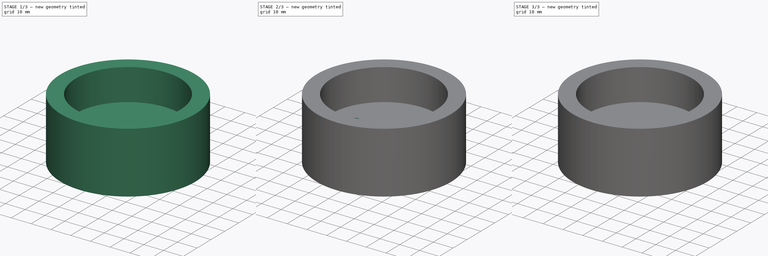
[diagram: build sequence overview — one tinted view per stage of 3, left to right]
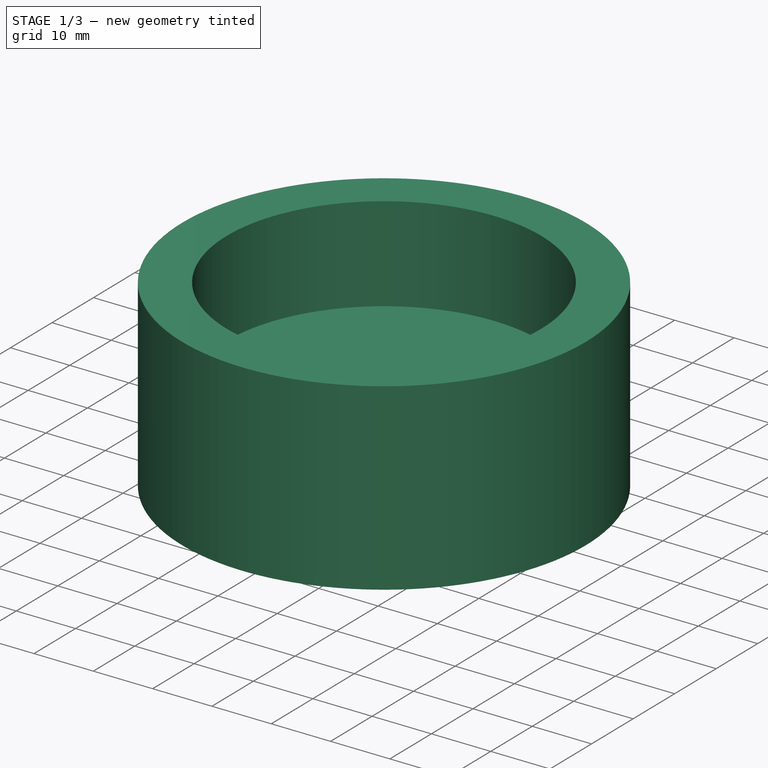
[diagram: stage 1 of 3 — iso view after this stage's code; geometry added in this stage tinted green]
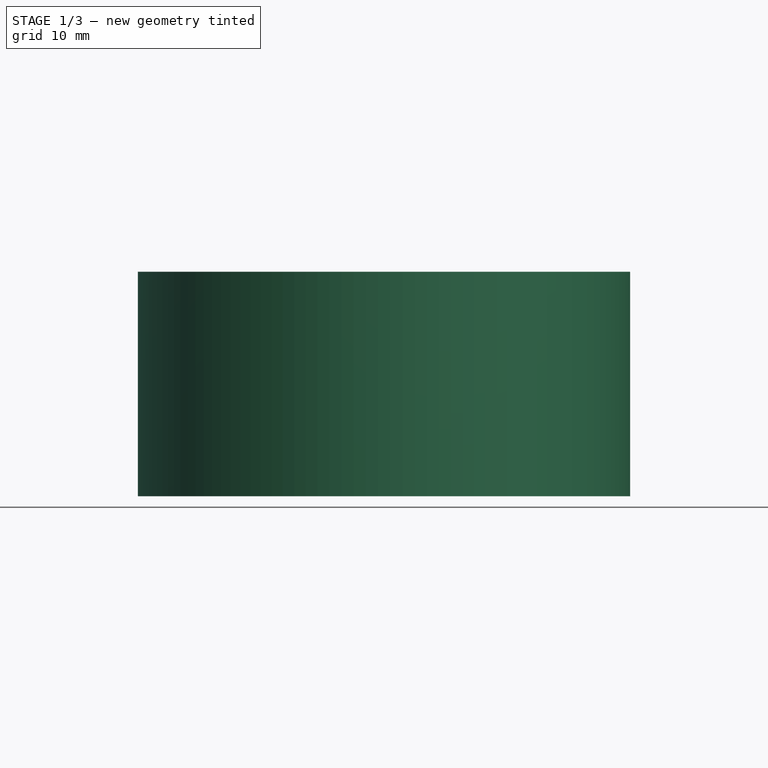
[diagram: stage 1 of 3 — front view after this stage's code; geometry added in this stage tinted green]
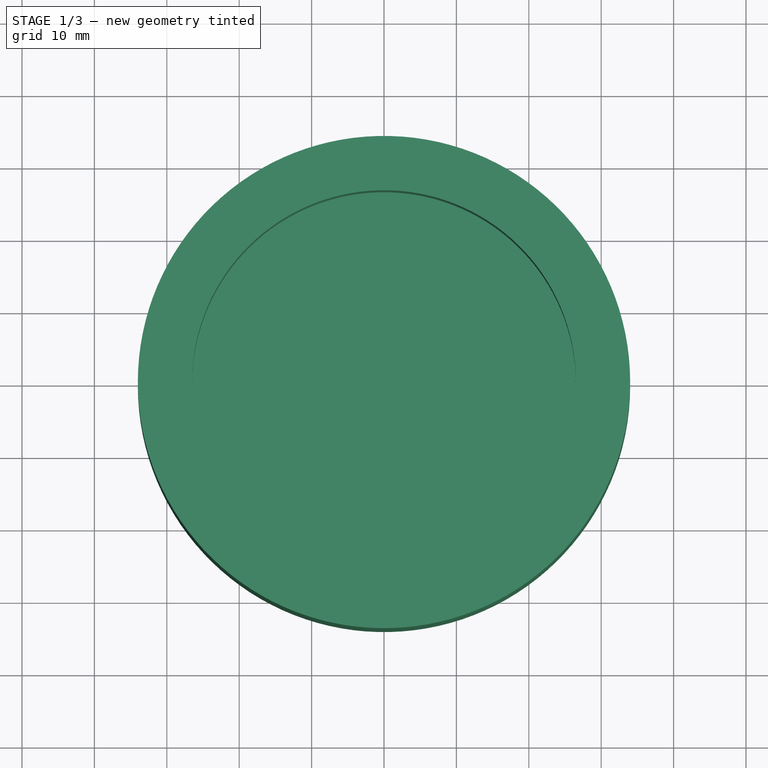
[diagram: stage 1 of 3 — top view after this stage's code; geometry added in this stage tinted green]
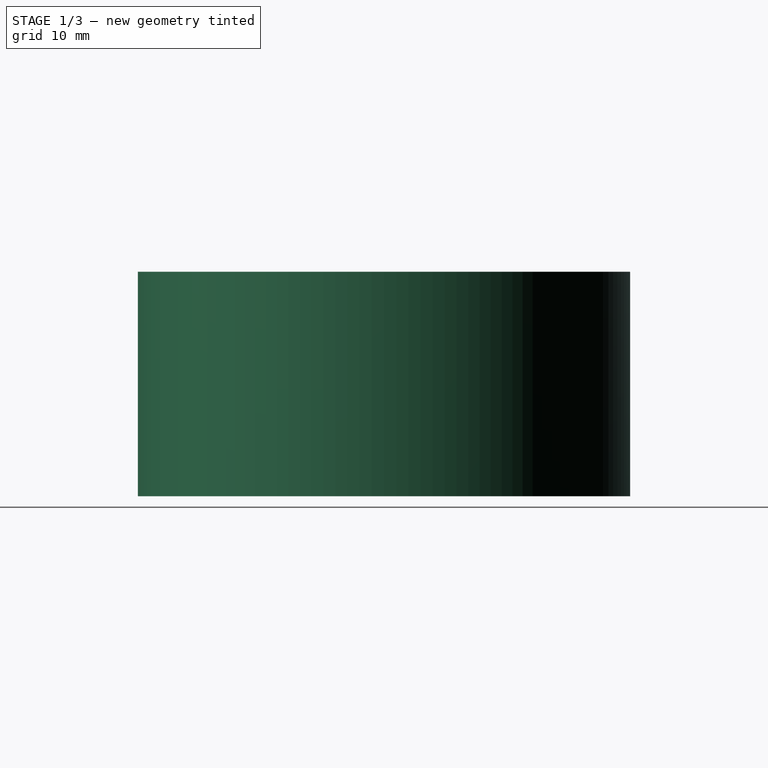
[diagram: stage 1 of 3 — right view after this stage's code; geometry added in this stage tinted green]
FCSTD DOCUMENT  (FreeCAD 0.21R33771 (Git))
Label: sputtering_machine_parts
License: All rights reserved
LicenseURL: https://en.wikipedia.org/wiki/All_rights_reserved
objects: Sketcher::SketchObject×4, PartDesign::Pocket×3, PartDesign::Pad×2, Spreadsheet::Sheet×1, PartDesign::Hole×1, PartDesign::Body×1, App::Part×1
note: 17 computed .brp shape members not serialized (recipe doc carries the construction recipe); baked Part::Feature solids carry a one-line shape summary decoded from their .brp

FEATURE [Spreadsheet::Sheet] Spreadsheet  label="mg_dim"
  cells = A1='Part name; B1='Dimension; C1='Value; A2='holder cylinder; B2='inner diam; C2(hc_inner_diam)==53 mm; A3='holder cylinder; B3='outer diam; C3(hc_outer_diam)==C2 + 15 mm; A4='holder cylinder; B4='outer ring height; C4(hc_outer_ring_h)==C5 + 16 mm; A5='holder cylinder; B5='base height; C5(hc_base_h)==15 mm; A6='back vent; B6='diam; C6(back_vent_diam)==5 mm; A7='rod shaft; B7='diam; C7(rod_shaft_diam)==9.5 mm; A8='rod shaft; B8='hc depth; C8(rod_shaft_hc_depth)==C5 - 5 mm; A9='back vent; B9='dist from center; C9(back_vent_cdist)==15 mm; A10='holder cylinder; B10='plate screw hole diam; C10(hc_screw_hole_diam)==C3 - C2 - 10.5 mm; A11='holder cylinder; B11='plate screw hole cdist; C11(hc_screw_hole_cdist)==C2 / 2 + 0.75 * C10
FEATURE [Sketcher::SketchObject] Sketch
  FullyConstrained = true
  MapMode = 5
  Support = -> [XY_Plane001]
  expr: Constraints[1] = <<mg_dim>>.hc_outer_diam
  expr: Constraints[3] = <<mg_dim>>.hc_inner_diam
  sketch-geometry (2):
    g0: Circle CenterX=0 CenterY=0 CenterZ=0 NormalX=0 NormalY=0 NormalZ=1 AngleXU=0 Radius=34
    g1: Circle CenterX=0 CenterY=0 CenterZ=0 NormalX=0 NormalY=0 NormalZ=1 AngleXU=0 Radius=26.5
  constraints (4):
    c: Coincident(g0,g-1)
    c: Diameter(g0) = 68
    c: Coincident(g1,g0)
    c: Diameter(g1) = 53
FEATURE [PartDesign::Pad] Pad
  Direction = (0,0,1)
  Length = 31
  Length2 = 10
  Profile = -> Sketch
  ReferenceAxis = -> Sketch [N_Axis]
  Type = 0
  expr: Length = <<mg_dim>>.hc_outer_ring_h
FEATURE [PartDesign::Pad] Pad001
  BaseFeature = -> Pad
  Direction = (0,0,1)
  Length = 15
  Length2 = 10
  Profile = -> Pad [Edge5]
  Type = 0
  expr: Length = <<mg_dim>>.hc_base_h
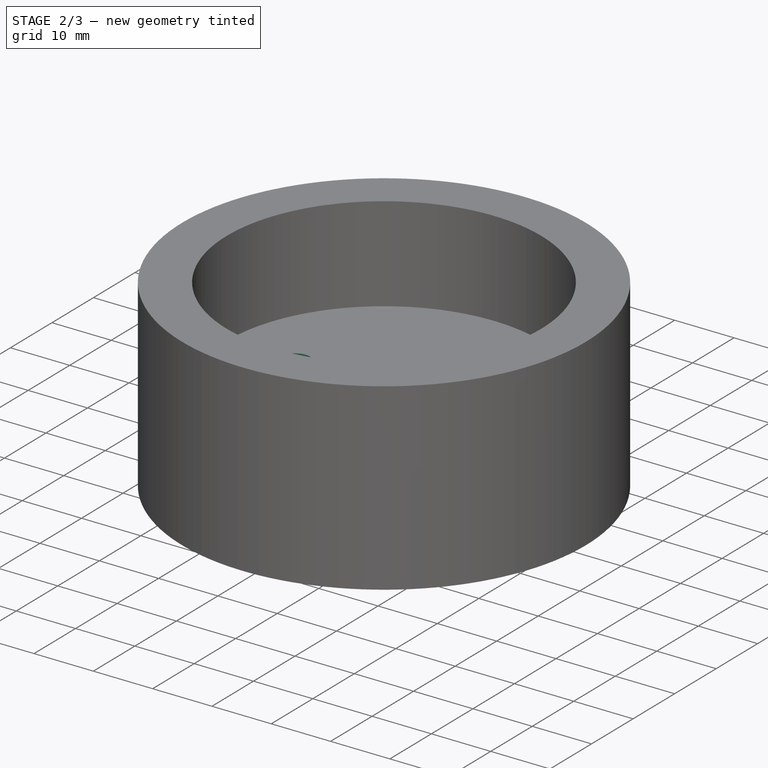
[diagram: stage 2 of 3 — iso view after this stage's code; geometry added in this stage tinted green]
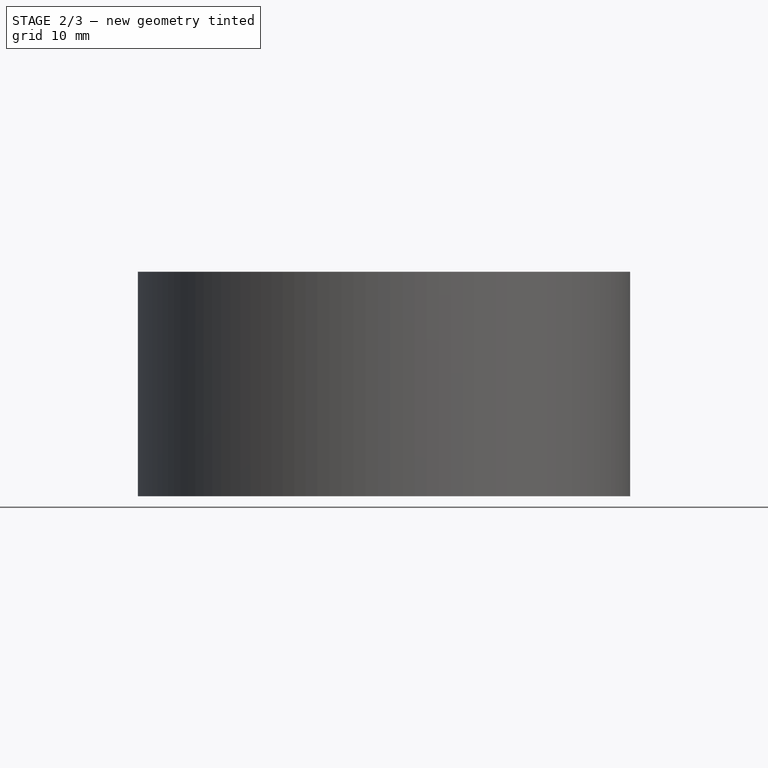
[diagram: stage 2 of 3 — front view after this stage's code; geometry added in this stage tinted green]
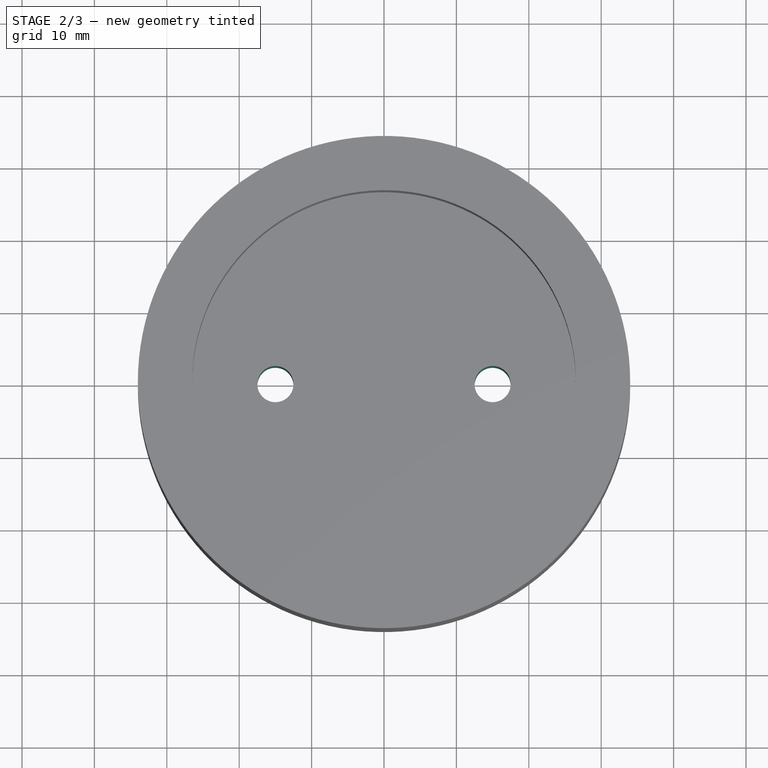
[diagram: stage 2 of 3 — top view after this stage's code; geometry added in this stage tinted green]
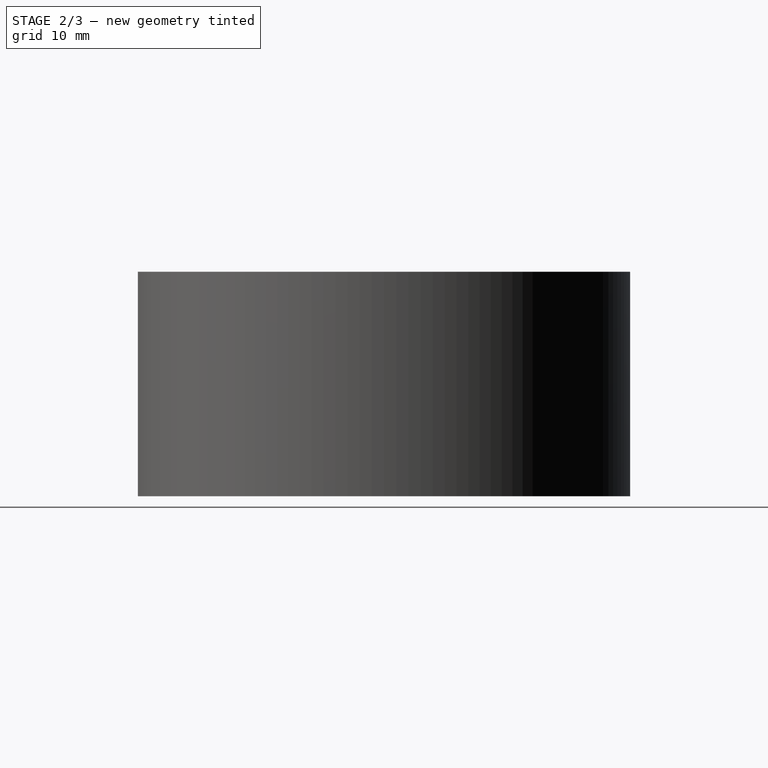
[diagram: stage 2 of 3 — right view after this stage's code; geometry added in this stage tinted green]
FEATURE [Sketcher::SketchObject] Sketch002
  FullyConstrained = false
  MapMode = 5
  Support = -> [XY_Plane001]
  expr: Constraints[0] = <<mg_dim>>.back_vent_diam
  expr: Constraints[2] = <<mg_dim>>.back_vent_diam
  expr: Constraints[3] = <<mg_dim>>.back_vent_cdist
  expr: Constraints[4] = <<mg_dim>>.back_vent_cdist
  sketch-geometry (2):
    g0: Circle CenterX=-15 CenterY=0 CenterZ=0 NormalX=0 NormalY=0 NormalZ=1 AngleXU=0 Radius=2.5
    g1: Circle CenterX=15 CenterY=0 CenterZ=0 NormalX=0 NormalY=0 NormalZ=1 AngleXU=0 Radius=2.5
  constraints (5):
    c: Diameter(g0) = 5
    c: PointOnObject(g1,g-1)
    c: Diameter(g1) = 5
    c: Distance(g-1,g0) = 15
    c: Distance(g-1,g1) = 15
FEATURE [Sketcher::SketchObject] Sketch001
  FullyConstrained = true
  MapMode = 5
  Support = -> [XY_Plane001]
  expr: Constraints[1] = Spreadsheet.rod_shaft_diam
  sketch-geometry (1):
    g0: Circle CenterX=0 CenterY=0 CenterZ=0 NormalX=0 NormalY=0 NormalZ=1 AngleXU=0 Radius=4.75
  constraints (2):
    c: Coincident(g0,g-1)
    c: Diameter(g0) = 9.5
FEATURE [PartDesign::Pocket] Pocket001
  BaseFeature = -> Pad001
  Direction = (0,0,-1)
  Length = 10
  Length2 = 5
  Midplane = true
  Profile = -> Sketch001
  ReferenceAxis = -> Sketch001 [N_Axis]
  Type = 0
  expr: Length = 10 mm
FEATURE [PartDesign::Hole] Hole
  BaseFeature = -> Pocket001
  CustomThreadClearance = 0
  Depth = 15
  DepthType = 0
  Diameter = 5
  DrillForDepth = false
  DrillPoint = 1
  DrillPointAngle = 118
  HoleCutCountersinkAngle = 90
  HoleCutCustomValues = false
  HoleCutDepth = 0
  HoleCutDiameter = 6.1
  HoleCutType = 0
  ModelThread = false
  Profile = -> Sketch002
  Reversed = true
  Tapered = false
  TaperedAngle = 90
  ThreadClass = 0
  ThreadDepth = 15
  ThreadDepthType = 0
  ThreadDirection = 0
  ThreadFit = 0
  ThreadSize = 0
  ThreadType = 0
  Threaded = false
  UseCustomThreadClearance = false
  expr: Depth = <<mg_dim>>.hc_base_h
  expr: Diameter = <<mg_dim>>.back_vent_diam
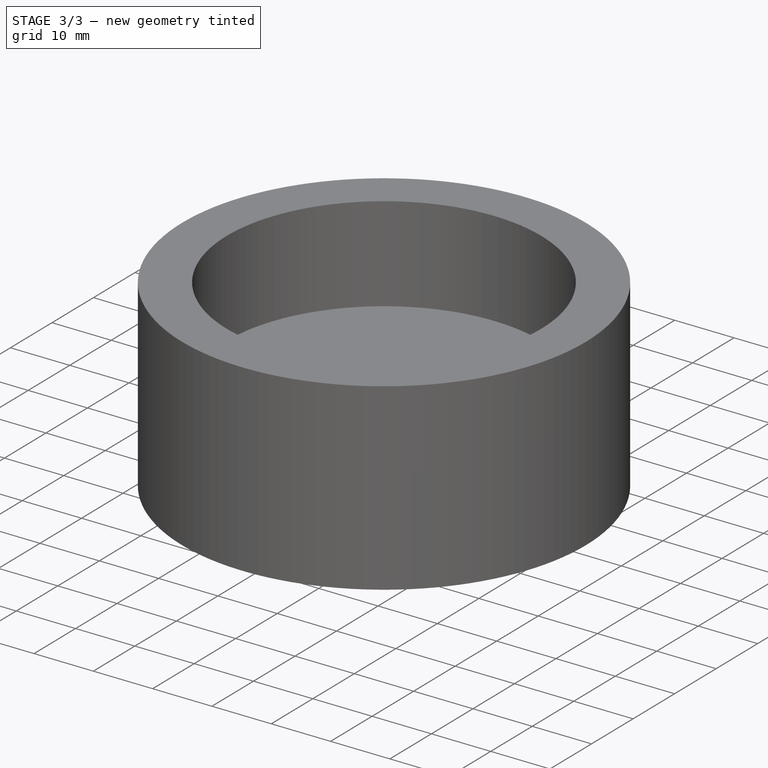
[diagram: stage 3 of 3 — iso view after this stage's code; geometry added in this stage tinted green]
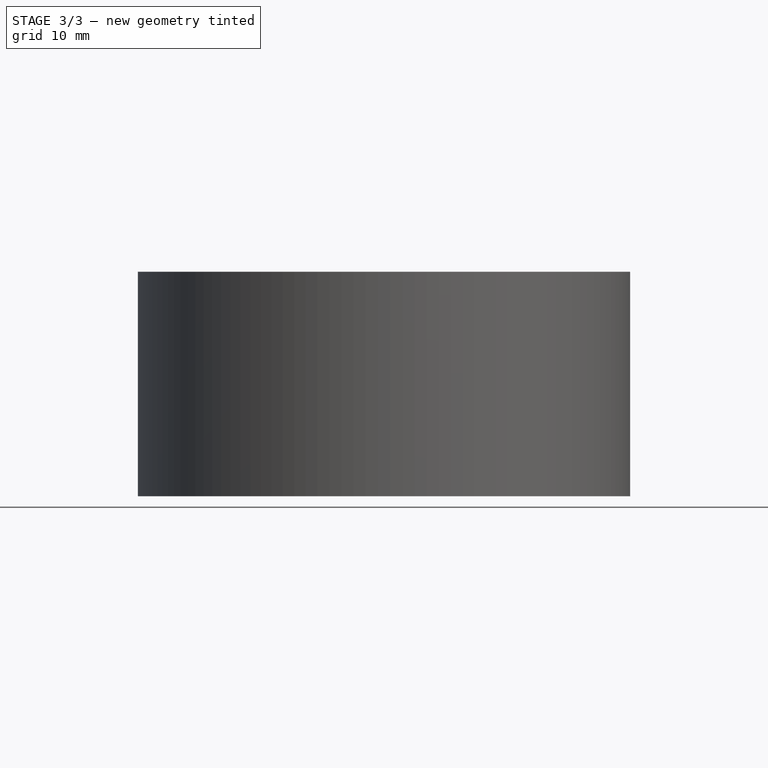
[diagram: stage 3 of 3 — front view after this stage's code; geometry added in this stage tinted green]
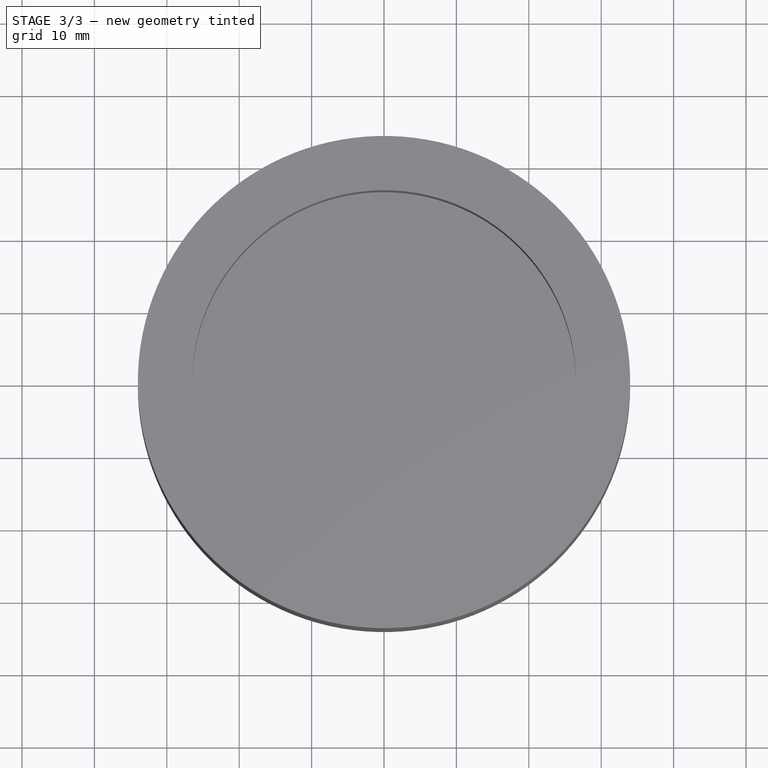
[diagram: stage 3 of 3 — top view after this stage's code; geometry added in this stage tinted green]
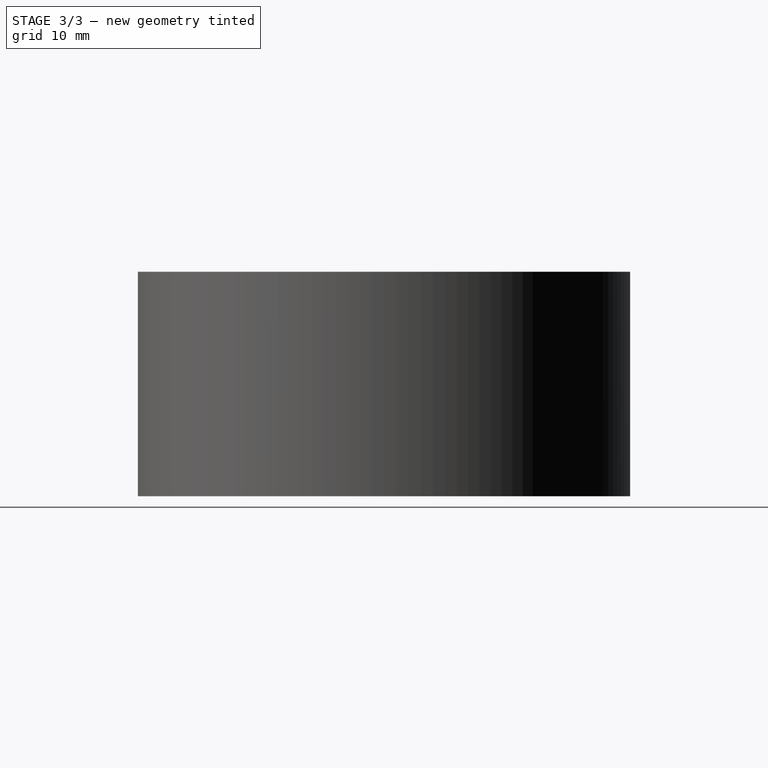
[diagram: stage 3 of 3 — right view after this stage's code; geometry added in this stage tinted green]
FEATURE [PartDesign::Pocket] Pocket
  BaseFeature = -> Pad001
  Direction = (0,0,-1)
  Length = 10
  Length2 = 5
  Midplane = true
  Profile = -> Sketch001
  ReferenceAxis = -> Sketch001 [N_Axis]
  Type = 0
  expr: Length = <<mg_dim>>.rod_shaft_hc_depth
FEATURE [Sketcher::SketchObject] Sketch003
  AttachmentOffset = pos=(0,0,31) rot=(0,0,1;0rad)
  FullyConstrained = true
  MapMode = 5
  Placement = pos=(0,0,31) rot=(0,0,1;0rad)
  Support = -> [XY_Plane001]
  expr: .AttachmentOffset.Base.z = <<mg_dim>>.hc_outer_ring_h
  expr: Constraints[1] = <<mg_dim>>.hc_screw_hole_diam
  expr: Constraints[2] = <<mg_dim>>.hc_screw_hole_cdist
  expr: Constraints[4] = <<mg_dim>>.hc_screw_hole_diam
  expr: Constraints[5] = <<mg_dim>>.hc_screw_hole_cdist
  sketch-geometry (2):
    g0: Circle CenterX=0 CenterY=29.875 CenterZ=0 NormalX=0 NormalY=0 NormalZ=1 AngleXU=0 Radius=2.25
    g1: Circle CenterX=0 CenterY=-29.875 CenterZ=0 NormalX=0 NormalY=0 NormalZ=1 AngleXU=0 Radius=2.25
  constraints (6):
    c: PointOnObject(g0,g-2)
    c: Diameter(g0) = 4.5
    c: Distance(g-1,g0) = 29.875
    c: PointOnObject(g1,g-2)
    c: Diameter(g1) = 4.5
    c: Distance(g-1,g1) = 29.875
FEATURE [PartDesign::Pocket] Pocket002
  BaseFeature = -> Hole
  Direction = (0,0,-1)
  Length = 10
  Length2 = 5
  Profile = -> Sketch003
  ReferenceAxis = -> Sketch003 [N_Axis]
  Type = 0
  expr: Length = <<mg_dim>>.rod_shaft_hc_depth
FEATURE [PartDesign::Body] Body  label="holder_cylinder"
  Group = -> [Sketch,Pad,Pad001,Sketch001,Pocket001,Sketch002,Hole,Sketch003,Pocket002]
  Origin = -> Origin001
  Tip = -> Pocket002
FEATURE [App::Part] Part  label="magnetron_holder"
  Group = -> [Body]
  Origin = -> Origin
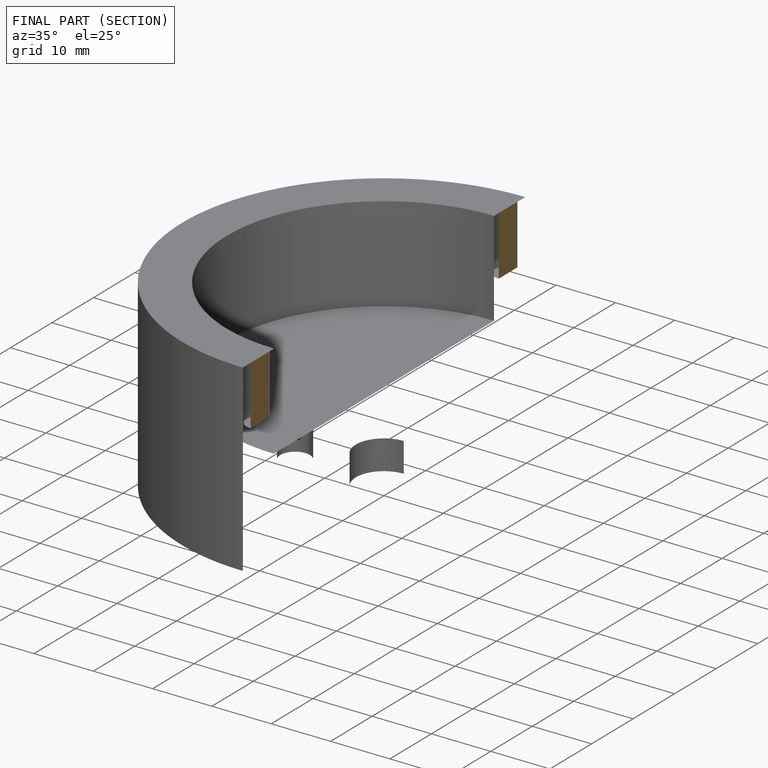
[diagram: finished part — half-section view (interior)]
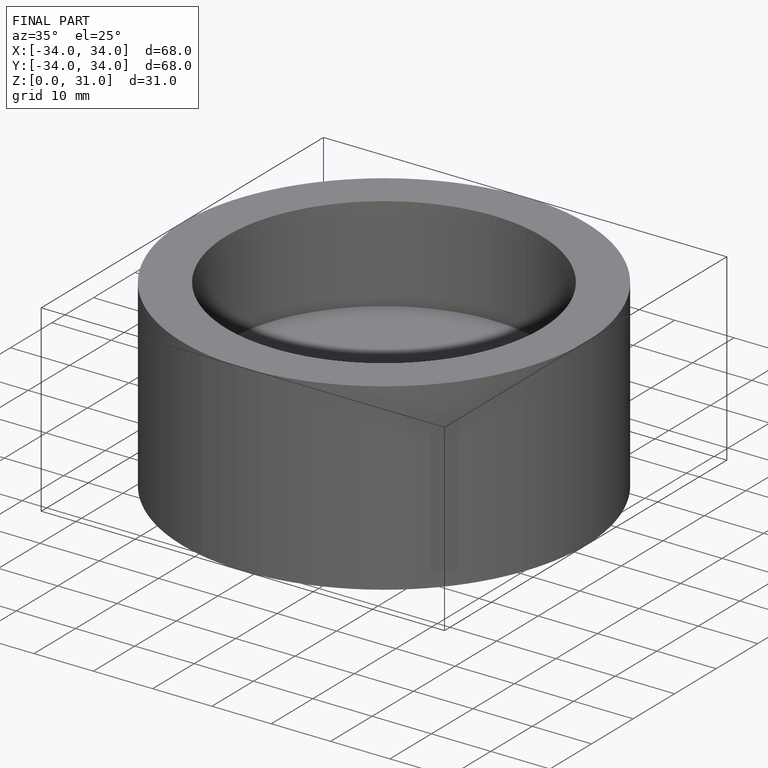
[diagram: finished part — iso view with bounding-box wireframe]
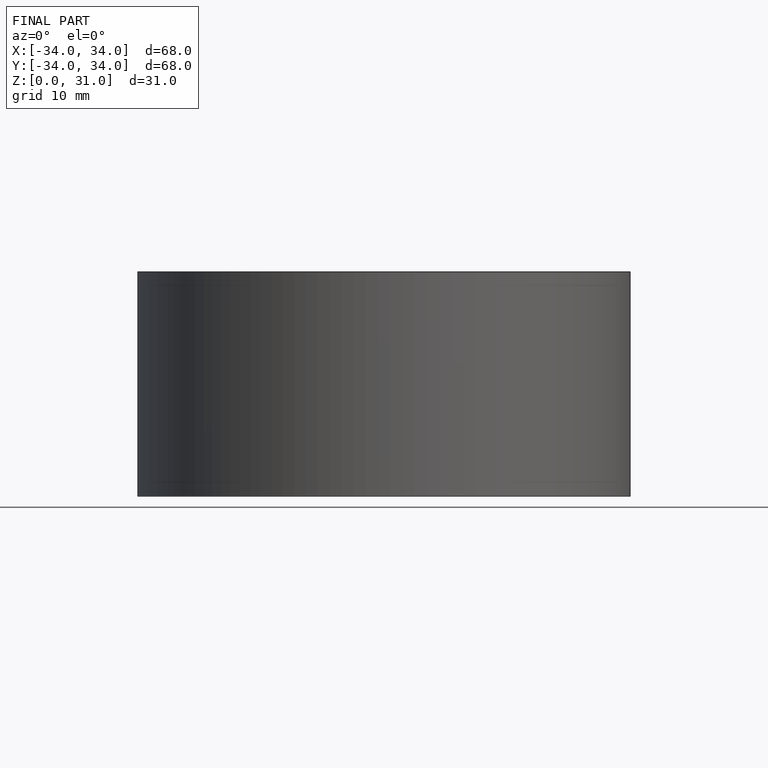
[diagram: finished part — front view with bounding-box wireframe]
